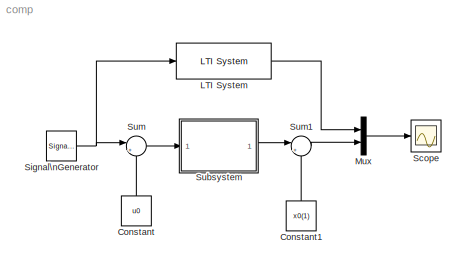
MODEL comp
KIND model
CONFIG AbsTol = auto
CONFIG FixedStep = auto
CONFIG MaxStep = auto
CONFIG MinStep = auto
CONFIG RelTol = 1e-3
CONFIG Solver = ode23
CONFIG SolverMode = Auto
CONFIG StartTime = 0.0
CONFIG StopTime = 22
BLOCK [Constant] Constant
  Value = u0
  VectorParams1D = on
BLOCK [Constant] Constant1
  Value = x0(1)
  VectorParams1D = on
BLOCK [Reference] LTI System  REF=cstblocks/LTI System
  IC = 0
  Ports = [1, 1]
  SourceBlock = cstblocks/LTI System
  SourceType = LTI Block
  sys = G
BLOCK [Mux] Mux
  DisplayOption = bar
  Inputs = 2
  Ports = [2, 1]
BLOCK [Scope] Scope
  DataFormat = StructureWithTime
  Decimation = 1
  Floating = off
  Grid = on
  LimitDataPoints = on
  MaxDataPoints = 5000
  NumInputPorts = 1
  Ports = [1]
  SampleInput = off
  SampleTime = 0
  SaveName = ScopeData
  SaveToWorkspace = off
  TickLabels = OneTimeTick
  TimeRange = 25
  YMax = 0.03
  YMin = -0.03
  ZoomMode = on
BLOCK [SignalGenerator] Signal\nGenerator
  Amplitude = .1
  Frequency = 1/10
  Units = Hertz
  VectorParams1D = on
  WaveForm = square
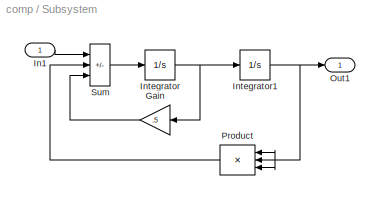
BLOCK [SubSystem] Subsystem
  Permissions = ReadWrite
  Ports = [1, 1]
  RTWFcnNameOpts = Auto
  RTWFileNameOpts = Auto
  RTWSystemCode = Auto
  ShowPortLabels = on
  SimViewingDevice = off
  TreatAsAtomicUnit = off
BLOCK [Gain] Subsystem/Gain
  Gain = .5
  Multiplication = Element-wise(K.*u)
  SaturateOnIntegerOverflow = on
BLOCK [Inport] Subsystem/In1
  DataType = auto
  Interpolate = on
  Port = 1
  PortDimensions = -1
  SampleTime = -1
  SignalType = auto
BLOCK [Integrator] Subsystem/Integrator
  AbsoluteTolerance = auto
  ExternalReset = none
  InitialCondition = x0(2)
  InitialConditionSource = internal
  LimitOutput = off
  LowerSaturationLimit = -inf
  Ports = [1, 1]
  ShowSaturationPort = off
  ShowStatePort = off
  UpperSaturationLimit = inf
BLOCK [Integrator] Subsystem/Integrator1
  AbsoluteTolerance = auto
  ExternalReset = none
  InitialCondition = x0(1)
  InitialConditionSource = internal
  LimitOutput = off
  LowerSaturationLimit = -inf
  Ports = [1, 1]
  ShowSaturationPort = off
  ShowStatePort = off
  UpperSaturationLimit = inf
BLOCK [Outport] Subsystem/Out1
  InitialOutput = []
  OutputWhenDisabled = held
  Port = 1
BLOCK [Product] Subsystem/Product
  Inputs = 3
  Multiplication = Element-wise(.*)
  Ports = [3, 1]
  SaturateOnIntegerOverflow = on
BLOCK [Sum] Subsystem/Sum
  IconShape = rectangular
  Inputs = +--
  Ports = [3, 1]
  SaturateOnIntegerOverflow = on
BLOCK [Sum] Sum
  IconShape = round
  Inputs = |++
  Ports = [2, 1]
  SaturateOnIntegerOverflow = on
BLOCK [Sum] Sum1
  IconShape = round
  Inputs = |+-
  Ports = [2, 1]
  SaturateOnIntegerOverflow = on
LINE Constant1:1 -> Sum1:2
LINE Constant:1 -> Sum:2
LINE LTI System:1 -> Mux:1
LINE Mux:1 -> Scope:1
NET Signal\nGenerator:1 -> LTI System:1, Sum:1
LINE Subsystem/Gain:1 -> Subsystem/Sum:3
LINE Subsystem/In1:1 -> Subsystem/Sum:1
NET Subsystem/Integrator1:1 -> Subsystem/Out1:1, Subsystem/Product:1, Subsystem/Product:2, Subsystem/Product:3
NET Subsystem/Integrator:1 -> Subsystem/Gain:1, Subsystem/Integrator1:1
LINE Subsystem/Product:1 -> Subsystem/Sum:2
LINE Subsystem/Sum:1 -> Subsystem/Integrator:1
LINE Subsystem:1 -> Sum1:1
LINE Sum1:1 -> Mux:2
LINE Sum:1 -> Subsystem:1
note: NET lines group one-source signal fan-out (src -> all destinations, sorted); 1:1 wires keep LINE
